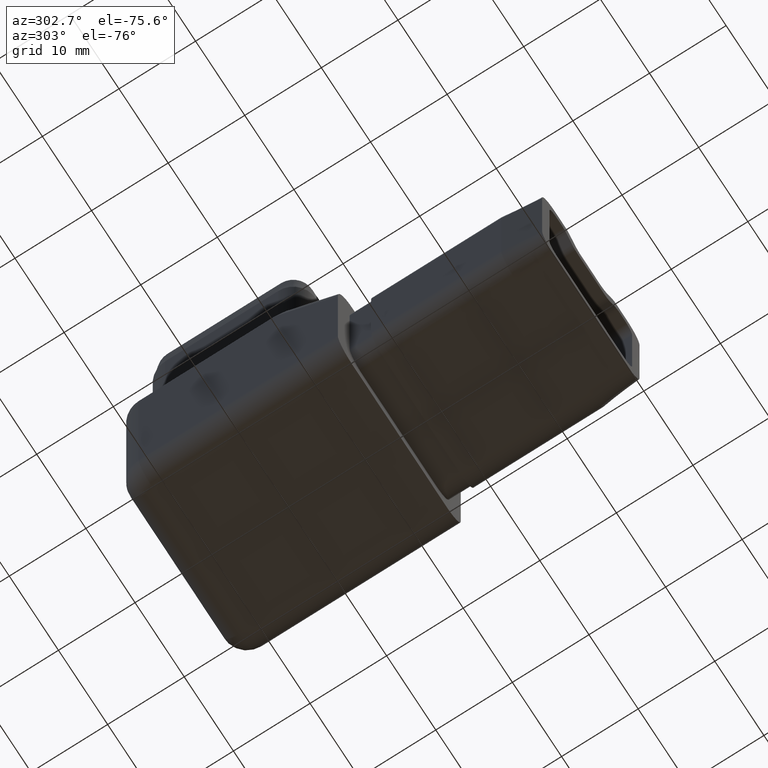
[diagram: clean part render]
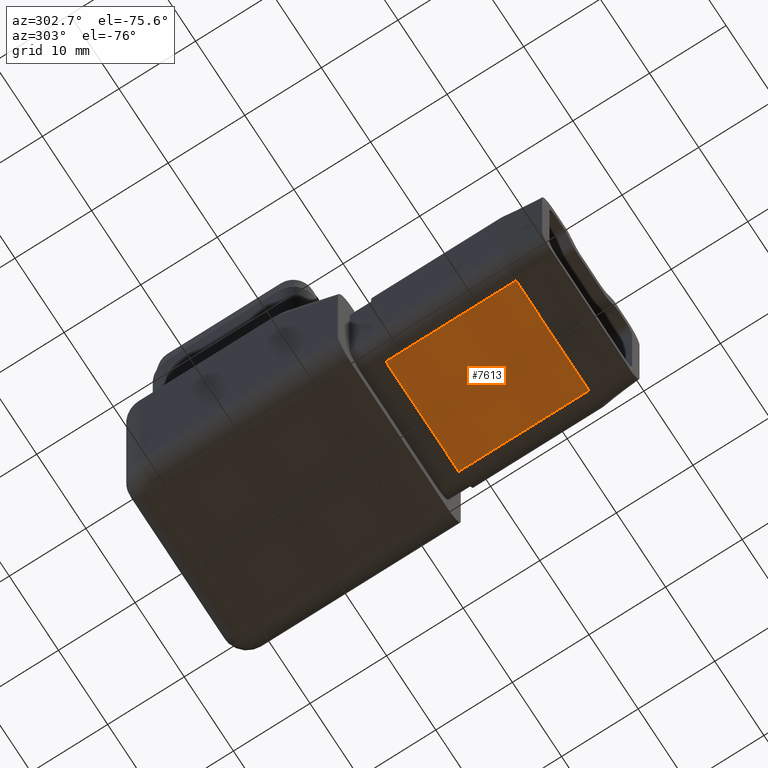
[diagram: same view with one face highlighted and labeled with its STEP entity id]
A machine part, auxiliary view. The second image highlights one B-rep face of the part: STEP entity #7613.
In plain terms, the highlighted planar face has unit normal (0, 0, -1).
Its self-contained STEP definition (entity closure, byte-faithful):
#629 = ORIENTED_EDGE ( 'NONE', *, *, #4068, .T. ) ;
#1043 = VECTOR ( 'NONE', #4507, 1000.000000000000000 ) ;
#1148 = EDGE_CURVE ( 'NONE', #22094, #15154, #18016, .T. ) ;
#1366 = DIRECTION ( 'NONE',  ( 0.0000000000000000000, 1.000000000000000000, 4.440892098500625700E-016 ) ) ;
#1539 = ORIENTED_EDGE ( 'NONE', *, *, #1148, .F. ) ;
#2108 = ORIENTED_EDGE ( 'NONE', *, *, #10493, .T. ) ;
#2454 = CARTESIAN_POINT ( 'NONE',  ( 7.400000000000000400, -17.50000000000000400, -12.40000000000000600 ) ) ;
#2461 = CARTESIAN_POINT ( 'NONE',  ( 7.400000000000000400, -34.50000000000000000, -12.40000000000001600 ) ) ;
#2840 = DIRECTION ( 'NONE',  ( -1.000000000000000000, -0.0000000000000000000, -0.0000000000000000000 ) ) ;
#2887 = CARTESIAN_POINT ( 'NONE',  ( -7.400000000000003900, -17.50000000000000400, -12.40000000000000400 ) ) ;
#3659 = VERTEX_POINT ( 'NONE', #14073 ) ;
#4068 = EDGE_CURVE ( 'NONE', #13299, #16459, #10798, .T. ) ;
#4507 = DIRECTION ( 'NONE',  ( -1.000000000000000000, -0.0000000000000000000, -0.0000000000000000000 ) ) ;
#5188 = DIRECTION ( 'NONE',  ( 0.0000000000000000000, 4.440892098500625700E-016, -1.000000000000000000 ) ) ;
#5487 = DIRECTION ( 'NONE',  ( 1.000000000000000000, 0.0000000000000000000, 0.0000000000000000000 ) ) ;
#6141 = LINE ( 'NONE', #2887, #23987 ) ;
#6827 = CARTESIAN_POINT ( 'NONE',  ( -7.400000000000003900, -17.50000000000000400, -12.40000000000000400 ) ) ;
#7577 = LINE ( 'NONE', #13392, #16827 ) ;
#7613 = ADVANCED_FACE ( 'NONE', ( #11330 ), #19056, .T. ) ;
#8510 = EDGE_CURVE ( 'NONE', #16859, #15154, #6141, .T. ) ;
#9100 = CARTESIAN_POINT ( 'NONE',  ( 7.400000000000000400, -34.50000000000000000, -12.40000000000001600 ) ) ;
#9158 = LINE ( 'NONE', #21368, #23643 ) ;
#10493 = EDGE_CURVE ( 'NONE', #22094, #13299, #9158, .T. ) ;
#10585 = AXIS2_PLACEMENT_3D ( 'NONE', #16993, #5188, #23100 ) ;
#10798 = LINE ( 'NONE', #9100, #20985 ) ;
#11330 = FACE_OUTER_BOUND ( 'NONE', #20239, .T. ) ;
#12019 = VECTOR ( 'NONE', #1366, 1000.000000000000000 ) ;
#13299 = VERTEX_POINT ( 'NONE', #2461 ) ;
#13392 = CARTESIAN_POINT ( 'NONE',  ( -7.400000000000009200, -34.49999999999999300, -12.40000000000002200 ) ) ;
#13514 = DIRECTION ( 'NONE',  ( -0.0000000000000000000, -1.000000000000000000, -4.440892098500625700E-016 ) ) ;
#14073 = CARTESIAN_POINT ( 'NONE',  ( -7.400000000000009200, -34.49999999999999300, -12.40000000000002200 ) ) ;
#14435 = CARTESIAN_POINT ( 'NONE',  ( 0.0000000000000000000, -17.50000000000000400, -12.40000000000000600 ) ) ;
#15154 = VERTEX_POINT ( 'NONE', #14435 ) ;
#16413 = ORIENTED_EDGE ( 'NONE', *, *, #17186, .T. ) ;
#16459 = VERTEX_POINT ( 'NONE', #16768 ) ;
#16768 = CARTESIAN_POINT ( 'NONE',  ( -5.204170427930421300E-015, -34.49999999999999300, -12.40000000000002200 ) ) ;
#16827 = VECTOR ( 'NONE', #5487, 1000.000000000000000 ) ;
#16831 = CARTESIAN_POINT ( 'NONE',  ( 7.400000000000000400, -17.50000000000000400, -12.40000000000000600 ) ) ;
#16859 = VERTEX_POINT ( 'NONE', #6827 ) ;
#16986 = LINE ( 'NONE', #24688, #12019 ) ;
#16993 = CARTESIAN_POINT ( 'NONE',  ( -10.40000000000000200, -39.50000000000000000, -12.40000000000001500 ) ) ;
#17186 = EDGE_CURVE ( 'NONE', #3659, #16859, #16986, .T. ) ;
#17297 = ORIENTED_EDGE ( 'NONE', *, *, #21670, .F. ) ;
#18016 = LINE ( 'NONE', #2454, #1043 ) ;
#19056 = PLANE ( 'NONE',  #10585 ) ;
#20239 = EDGE_LOOP ( 'NONE', ( #629, #17297, #16413, #20640, #1539, #2108 ) ) ;
#20315 = DIRECTION ( 'NONE',  ( 1.000000000000000000, 0.0000000000000000000, 0.0000000000000000000 ) ) ;
#20640 = ORIENTED_EDGE ( 'NONE', *, *, #8510, .T. ) ;
#20985 = VECTOR ( 'NONE', #2840, 1000.000000000000000 ) ;
#21368 = CARTESIAN_POINT ( 'NONE',  ( 7.400000000000007500, -39.50000000000000000, -12.40000000000001500 ) ) ;
#21670 = EDGE_CURVE ( 'NONE', #3659, #16459, #7577, .T. ) ;
#22094 = VERTEX_POINT ( 'NONE', #16831 ) ;
#23100 = DIRECTION ( 'NONE',  ( 0.0000000000000000000, 1.000000000000000000, 4.440892098500625700E-016 ) ) ;
#23643 = VECTOR ( 'NONE', #13514, 1000.000000000000000 ) ;
#23987 = VECTOR ( 'NONE', #20315, 1000.000000000000000 ) ;
#24688 = CARTESIAN_POINT ( 'NONE',  ( -7.400000000000003000, -39.50000000000000000, -12.40000000000001500 ) ) ;